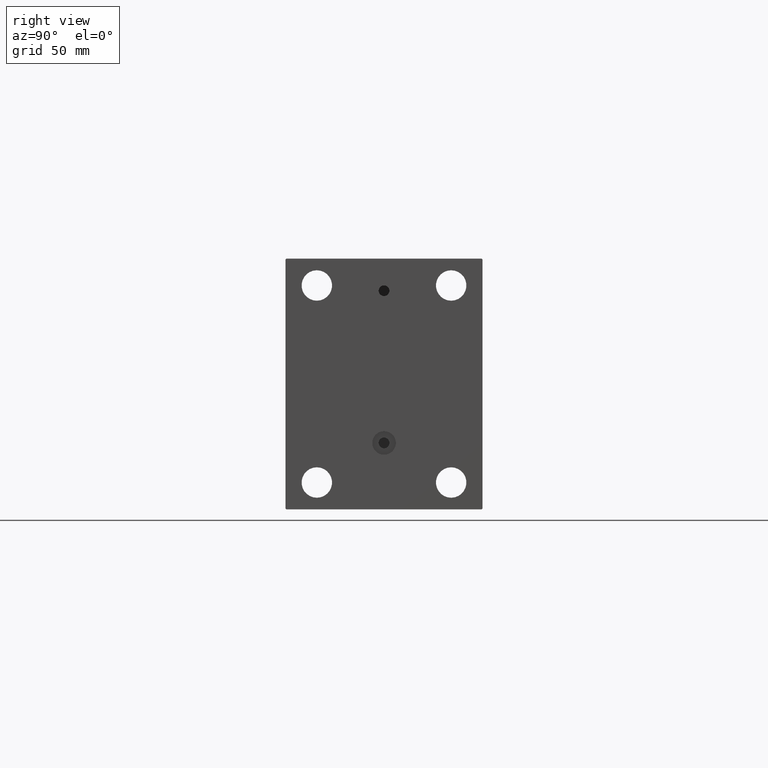
[diagram: clean part render]
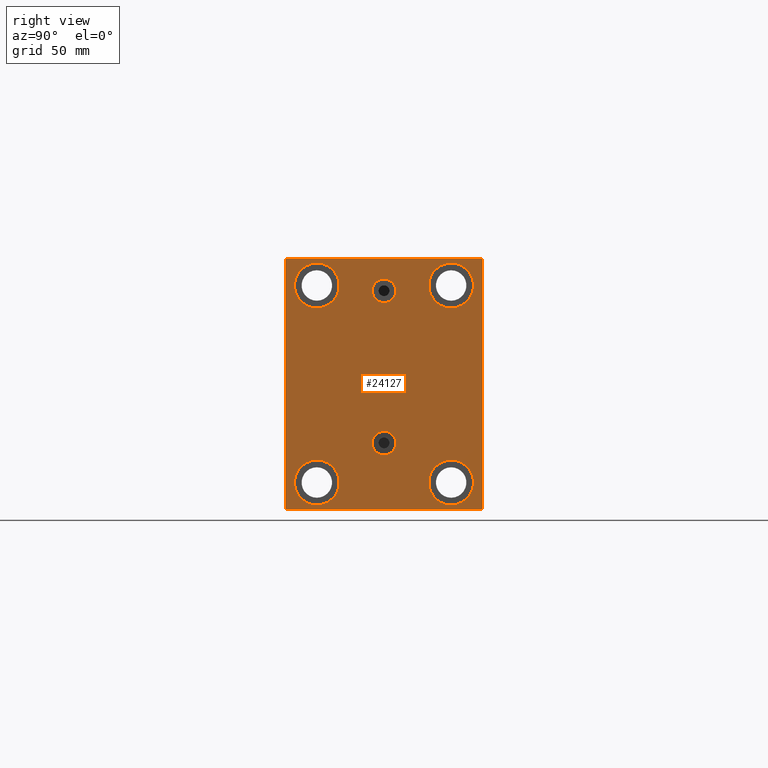
[diagram: same view with one face highlighted and labeled with its STEP entity id]
A machine part, right view. The second image highlights one B-rep face of the part: STEP entity #24127.
In plain terms, the highlighted planar face has unit normal (1, 0, 0).
Its self-contained STEP definition (entity closure, byte-faithful):
#638 = CARTESIAN_POINT ( 'NONE',  ( 243.0000000000000000, 55.00000000000002132, -69.49999999999997158 ) ) ;
#1002 = VERTEX_POINT ( 'NONE', #29715 ) ;
#1027 = EDGE_CURVE ( 'NONE', #41158, #43482, #15551, .T. ) ;
#1388 = DIRECTION ( 'NONE',  ( 1.000000000000000000, 0.000000000000000000, 0.000000000000000000 ) ) ;
#1474 = ORIENTED_EDGE ( 'NONE', *, *, #36193, .T. ) ;
#1838 = EDGE_CURVE ( 'NONE', #25238, #33570, #27618, .T. ) ;
#1909 = VERTEX_POINT ( 'NONE', #12318 ) ;
#2012 = AXIS2_PLACEMENT_3D ( 'NONE', #18868, #1388, #33480 ) ;
#2183 = EDGE_LOOP ( 'NONE', ( #8407, #42965 ) ) ;
#2468 = ORIENTED_EDGE ( 'NONE', *, *, #6072, .T. ) ;
#2766 = ORIENTED_EDGE ( 'NONE', *, *, #42655, .F. ) ;
#2870 = EDGE_CURVE ( 'NONE', #33570, #25238, #30680, .T. ) ;
#3009 = CARTESIAN_POINT ( 'NONE',  ( 243.0000000000000000, -55.00000000000000711, -70.00000000000002842 ) ) ;
#3378 = LINE ( 'NONE', #12309, #38345 ) ;
#4165 = AXIS2_PLACEMENT_3D ( 'NONE', #5289, #9508, #38322 ) ;
#4504 = VERTEX_POINT ( 'NONE', #12935 ) ;
#4664 = VECTOR ( 'NONE', #13137, 1000.000000000000000 ) ;
#4668 = EDGE_CURVE ( 'NONE', #41846, #22910, #45833, .T. ) ;
#4738 = VERTEX_POINT ( 'NONE', #38140 ) ;
#4804 = CARTESIAN_POINT ( 'NONE',  ( 243.0000000000000000, 4.041334437186266200E-15, -39.58000000000000540 ) ) ;
#5081 = CARTESIAN_POINT ( 'NONE',  ( 243.0000000000000000, 37.50000000000000711, 42.50000000000000711 ) ) ;
#5189 = DIRECTION ( 'NONE',  ( 0.000000000000000000, 0.000000000000000000, 1.000000000000000000 ) ) ;
#5289 = CARTESIAN_POINT ( 'NONE',  ( 243.0000000000000000, 4.041334437186266200E-15, -33.00000000000000000 ) ) ;
#5644 = CARTESIAN_POINT ( 'NONE',  ( 243.0000000000000000, -37.50000000000000711, 55.00000000000000711 ) ) ;
#5665 = DIRECTION ( 'NONE',  ( 0.000000000000000000, -0.7071067811865474617, -0.7071067811865474617 ) ) ;
#5943 = VERTEX_POINT ( 'NONE', #20140 ) ;
#6072 = EDGE_CURVE ( 'NONE', #17604, #9029, #3378, .T. ) ;
#6087 = FACE_BOUND ( 'NONE', #45901, .T. ) ;
#6242 = EDGE_LOOP ( 'NONE', ( #2766, #41104 ) ) ;
#6325 = PLANE ( 'NONE',  #12346 ) ;
#6531 = DIRECTION ( 'NONE',  ( -1.000000000000000000, -0.000000000000000000, -0.000000000000000000 ) ) ;
#6627 = DIRECTION ( 'NONE',  ( -0.000000000000000000, 0.7071067811865771047, -0.7071067811865180408 ) ) ;
#6786 = DIRECTION ( 'NONE',  ( 0.000000000000000000, 1.000000000000000000, 2.523234146875355012E-16 ) ) ;
#6940 = EDGE_CURVE ( 'NONE', #1909, #5943, #18765, .T. ) ;
#7212 = CARTESIAN_POINT ( 'NONE',  ( 243.0000000000000000, 37.49999999999997868, -54.99999999999999289 ) ) ;
#7444 = ORIENTED_EDGE ( 'NONE', *, *, #39673, .T. ) ;
#7725 = DIRECTION ( 'NONE',  ( 0.000000000000000000, 0.000000000000000000, 1.000000000000000000 ) ) ;
#7871 = EDGE_LOOP ( 'NONE', ( #43547, #20112 ) ) ;
#7987 = CIRCLE ( 'NONE', #44920, 12.49999999999999645 ) ;
#7998 = VERTEX_POINT ( 'NONE', #40037 ) ;
#8281 = VECTOR ( 'NONE', #35866, 1000.000000000000000 ) ;
#8364 = DIRECTION ( 'NONE',  ( -1.000000000000000000, -0.000000000000000000, -0.000000000000000000 ) ) ;
#8407 = ORIENTED_EDGE ( 'NONE', *, *, #6940, .T. ) ;
#9029 = VERTEX_POINT ( 'NONE', #45568 ) ;
#9405 = VERTEX_POINT ( 'NONE', #23965 ) ;
#9508 = DIRECTION ( 'NONE',  ( 1.000000000000000000, 0.000000000000000000, -0.000000000000000000 ) ) ;
#9751 = EDGE_CURVE ( 'NONE', #4738, #11013, #21959, .T. ) ;
#10208 = CIRCLE ( 'NONE', #4165, 6.580000000000002736 ) ;
#10305 = LINE ( 'NONE', #27294, #4664 ) ;
#10385 = DIRECTION ( 'NONE',  ( 0.000000000000000000, 0.000000000000000000, -1.000000000000000000 ) ) ;
#11013 = VERTEX_POINT ( 'NONE', #638 ) ;
#11911 = CARTESIAN_POINT ( 'NONE',  ( 243.0000000000000000, 37.50000000000000711, 55.00000000000000711 ) ) ;
#12219 = ORIENTED_EDGE ( 'NONE', *, *, #22328, .T. ) ;
#12309 = CARTESIAN_POINT ( 'NONE',  ( 243.0000000000000000, 62.24999999999997158, 62.24999999999997158 ) ) ;
#12318 = CARTESIAN_POINT ( 'NONE',  ( 243.0000000000000000, 37.49999999999997868, -67.49999999999998579 ) ) ;
#12346 = AXIS2_PLACEMENT_3D ( 'NONE', #45758, #20971, #27804 ) ;
#12593 = AXIS2_PLACEMENT_3D ( 'NONE', #5644, #23821, #5189 ) ;
#12935 = CARTESIAN_POINT ( 'NONE',  ( 243.0000000000000000, -54.50000000000000711, -70.00000000000002842 ) ) ;
#13137 = DIRECTION ( 'NONE',  ( 0.000000000000000000, 0.000000000000000000, -1.000000000000000000 ) ) ;
#13190 = DIRECTION ( 'NONE',  ( -1.000000000000000000, -0.000000000000000000, -0.000000000000000000 ) ) ;
#15551 = CIRCLE ( 'NONE', #2012, 6.580000000000002736 ) ;
#15647 = CIRCLE ( 'NONE', #42057, 6.580000000000002736 ) ;
#15847 = DIRECTION ( 'NONE',  ( -0.000000000000000000, -0.7071067811865474617, 0.7071067811865474617 ) ) ;
#16191 = CIRCLE ( 'NONE', #39598, 6.580000000000002736 ) ;
#16553 = DIRECTION ( 'NONE',  ( 0.000000000000000000, 0.000000000000000000, 1.000000000000000000 ) ) ;
#17208 = EDGE_CURVE ( 'NONE', #9029, #9405, #26118, .T. ) ;
#17466 = CARTESIAN_POINT ( 'NONE',  ( 243.0000000000000000, -8.775864102628257178E-15, 52.00000000000000711 ) ) ;
#17604 = VERTEX_POINT ( 'NONE', #30993 ) ;
#17978 = ORIENTED_EDGE ( 'NONE', *, *, #34933, .F. ) ;
#18022 = CARTESIAN_POINT ( 'NONE',  ( 243.0000000000000000, 4.041334437186266200E-15, -33.00000000000000000 ) ) ;
#18682 = ORIENTED_EDGE ( 'NONE', *, *, #1027, .F. ) ;
#18765 = CIRCLE ( 'NONE', #30811, 12.49999999999999645 ) ;
#18844 = ORIENTED_EDGE ( 'NONE', *, *, #35788, .T. ) ;
#18868 = CARTESIAN_POINT ( 'NONE',  ( 243.0000000000000000, -8.775864102628257178E-15, 52.00000000000000711 ) ) ;
#19152 = CARTESIAN_POINT ( 'NONE',  ( 243.0000000000000000, -55.00000000000000711, 69.50000000000001421 ) ) ;
#19158 = EDGE_CURVE ( 'NONE', #45849, #1002, #10305, .T. ) ;
#19438 = AXIS2_PLACEMENT_3D ( 'NONE', #33197, #22357, #7725 ) ;
#19848 = DIRECTION ( 'NONE',  ( 0.000000000000000000, -1.982541115402065110E-16, 1.000000000000000000 ) ) ;
#20008 = EDGE_LOOP ( 'NONE', ( #22057, #35688, #22743, #1474, #12219, #32762, #18844, #2468 ) ) ;
#20056 = ORIENTED_EDGE ( 'NONE', *, *, #2870, .T. ) ;
#20112 = ORIENTED_EDGE ( 'NONE', *, *, #4668, .T. ) ;
#20140 = CARTESIAN_POINT ( 'NONE',  ( 243.0000000000000000, 37.49999999999997868, -42.49999999999999289 ) ) ;
#20485 = FACE_BOUND ( 'NONE', #7871, .T. ) ;
#20540 = LINE ( 'NONE', #41575, #32780 ) ;
#20820 = ORIENTED_EDGE ( 'NONE', *, *, #1838, .T. ) ;
#20858 = AXIS2_PLACEMENT_3D ( 'NONE', #11911, #8364, #22773 ) ;
#20889 = VERTEX_POINT ( 'NONE', #5081 ) ;
#20953 = LINE ( 'NONE', #3009, #37182 ) ;
#20971 = DIRECTION ( 'NONE',  ( 1.000000000000000000, 0.000000000000000000, 0.000000000000000000 ) ) ;
#21475 = CIRCLE ( 'NONE', #38788, 12.49999999999999645 ) ;
#21959 = LINE ( 'NONE', #29260, #8281 ) ;
#22057 = ORIENTED_EDGE ( 'NONE', *, *, #17208, .T. ) ;
#22328 = EDGE_CURVE ( 'NONE', #4504, #4738, #20953, .T. ) ;
#22357 = DIRECTION ( 'NONE',  ( -1.000000000000000000, -0.000000000000000000, -0.000000000000000000 ) ) ;
#22738 = VERTEX_POINT ( 'NONE', #42847 ) ;
#22743 = ORIENTED_EDGE ( 'NONE', *, *, #19158, .T. ) ;
#22773 = DIRECTION ( 'NONE',  ( 0.000000000000000000, 0.000000000000000000, 1.000000000000000000 ) ) ;
#22910 = VERTEX_POINT ( 'NONE', #42789 ) ;
#22990 = CIRCLE ( 'NONE', #25970, 12.49999999999999645 ) ;
#23614 = LINE ( 'NONE', #42028, #42606 ) ;
#23767 = CARTESIAN_POINT ( 'NONE',  ( 243.0000000000000000, 37.49999999999997868, -54.99999999999999289 ) ) ;
#23779 = VECTOR ( 'NONE', #6627, 999.9999999999998863 ) ;
#23821 = DIRECTION ( 'NONE',  ( -1.000000000000000000, -0.000000000000000000, -0.000000000000000000 ) ) ;
#23858 = LINE ( 'NONE', #31650, #23779 ) ;
#23965 = CARTESIAN_POINT ( 'NONE',  ( 243.0000000000000000, -54.50000000000003553, 69.99999999999998579 ) ) ;
#24053 = DIRECTION ( 'NONE',  ( -1.000000000000000000, -0.000000000000000000, -0.000000000000000000 ) ) ;
#24127 = ADVANCED_FACE ( 'NONE', ( #42923, #42453, #38665, #6087, #45991, #20485, #31350 ), #6325, .T. ) ;
#24269 = ORIENTED_EDGE ( 'NONE', *, *, #30406, .T. ) ;
#24640 = DIRECTION ( 'NONE',  ( 1.000000000000000000, 0.000000000000000000, -0.000000000000000000 ) ) ;
#24864 = CARTESIAN_POINT ( 'NONE',  ( 243.0000000000000000, -37.50000000000002132, -42.49999999999999289 ) ) ;
#25238 = VERTEX_POINT ( 'NONE', #43604 ) ;
#25970 = AXIS2_PLACEMENT_3D ( 'NONE', #42248, #24053, #38459 ) ;
#26118 = LINE ( 'NONE', #36970, #39292 ) ;
#27294 = CARTESIAN_POINT ( 'NONE',  ( 243.0000000000000000, -55.00000000000000711, 69.99999999999998579 ) ) ;
#27420 = CARTESIAN_POINT ( 'NONE',  ( 243.0000000000000000, -37.50000000000000711, 67.50000000000000000 ) ) ;
#27579 = DIRECTION ( 'NONE',  ( 0.000000000000000000, 0.000000000000000000, 1.000000000000000000 ) ) ;
#27618 = CIRCLE ( 'NONE', #45736, 12.49999999999999645 ) ;
#27804 = DIRECTION ( 'NONE',  ( 0.000000000000000000, 0.000000000000000000, -1.000000000000000000 ) ) ;
#29052 = CARTESIAN_POINT ( 'NONE',  ( 243.0000000000000000, -7.970046508789298136E-15, 58.58000000000000540 ) ) ;
#29260 = CARTESIAN_POINT ( 'NONE',  ( 243.0000000000000000, 62.25000000000153477, -62.24999999999806732 ) ) ;
#29715 = CARTESIAN_POINT ( 'NONE',  ( 243.0000000000000000, -55.00000000000000711, -69.50000000000007105 ) ) ;
#30406 = EDGE_CURVE ( 'NONE', #7998, #20889, #22990, .T. ) ;
#30680 = CIRCLE ( 'NONE', #12593, 12.49999999999999645 ) ;
#30772 = EDGE_CURVE ( 'NONE', #5943, #1909, #21475, .T. ) ;
#30811 = AXIS2_PLACEMENT_3D ( 'NONE', #7212, #38619, #46639 ) ;
#30948 = CARTESIAN_POINT ( 'NONE',  ( 243.0000000000000000, -37.50000000000000711, 55.00000000000000711 ) ) ;
#30993 = CARTESIAN_POINT ( 'NONE',  ( 243.0000000000000000, 54.99999999999999289, 69.49999999999995737 ) ) ;
#31350 = FACE_OUTER_BOUND ( 'NONE', #20008, .T. ) ;
#31650 = CARTESIAN_POINT ( 'NONE',  ( 243.0000000000000000, -62.24999999999776890, -62.25000000000295586 ) ) ;
#32762 = ORIENTED_EDGE ( 'NONE', *, *, #9751, .T. ) ;
#32780 = VECTOR ( 'NONE', #19848, 1000.000000000000000 ) ;
#33197 = CARTESIAN_POINT ( 'NONE',  ( 243.0000000000000000, -37.50000000000002132, -54.99999999999999289 ) ) ;
#33480 = DIRECTION ( 'NONE',  ( 0.000000000000000000, 0.000000000000000000, -1.000000000000000000 ) ) ;
#33570 = VERTEX_POINT ( 'NONE', #27420 ) ;
#34762 = EDGE_CURVE ( 'NONE', #9405, #45849, #23614, .T. ) ;
#34933 = EDGE_CURVE ( 'NONE', #43482, #41158, #16191, .T. ) ;
#35387 = EDGE_LOOP ( 'NONE', ( #17978, #18682 ) ) ;
#35688 = ORIENTED_EDGE ( 'NONE', *, *, #34762, .T. ) ;
#35788 = EDGE_CURVE ( 'NONE', #11013, #17604, #20540, .T. ) ;
#35866 = DIRECTION ( 'NONE',  ( -0.000000000000000000, 0.7071067811865279218, 0.7071067811865672237 ) ) ;
#36193 = EDGE_CURVE ( 'NONE', #1002, #4504, #23858, .T. ) ;
#36537 = EDGE_CURVE ( 'NONE', #22738, #45553, #10208, .T. ) ;
#36711 = CARTESIAN_POINT ( 'NONE',  ( 243.0000000000000000, -8.775864102628257178E-15, 45.42000000000000171 ) ) ;
#36970 = CARTESIAN_POINT ( 'NONE',  ( 243.0000000000000000, 54.99999999999999289, 70.00000000000000000 ) ) ;
#37182 = VECTOR ( 'NONE', #6786, 1000.000000000000000 ) ;
#37335 = EDGE_CURVE ( 'NONE', #22910, #41846, #7987, .T. ) ;
#38140 = CARTESIAN_POINT ( 'NONE',  ( 243.0000000000000000, 54.50000000000002132, -70.00000000000000000 ) ) ;
#38208 = CARTESIAN_POINT ( 'NONE',  ( 243.0000000000000000, -37.50000000000002132, -54.99999999999999289 ) ) ;
#38322 = DIRECTION ( 'NONE',  ( 0.000000000000000000, 0.000000000000000000, 1.000000000000000000 ) ) ;
#38345 = VECTOR ( 'NONE', #15847, 1000.000000000000114 ) ;
#38459 = DIRECTION ( 'NONE',  ( 0.000000000000000000, 0.000000000000000000, 1.000000000000000000 ) ) ;
#38478 = DIRECTION ( 'NONE',  ( 1.000000000000000000, 0.000000000000000000, 0.000000000000000000 ) ) ;
#38619 = DIRECTION ( 'NONE',  ( -1.000000000000000000, -0.000000000000000000, -0.000000000000000000 ) ) ;
#38636 = DIRECTION ( 'NONE',  ( 0.000000000000000000, 0.000000000000000000, 1.000000000000000000 ) ) ;
#38665 = FACE_BOUND ( 'NONE', #2183, .T. ) ;
#38788 = AXIS2_PLACEMENT_3D ( 'NONE', #23767, #6531, #38636 ) ;
#39292 = VECTOR ( 'NONE', #40764, 1000.000000000000000 ) ;
#39598 = AXIS2_PLACEMENT_3D ( 'NONE', #17466, #38478, #10385 ) ;
#39673 = EDGE_CURVE ( 'NONE', #20889, #7998, #46499, .T. ) ;
#40037 = CARTESIAN_POINT ( 'NONE',  ( 243.0000000000000000, 37.50000000000000711, 67.50000000000000000 ) ) ;
#40764 = DIRECTION ( 'NONE',  ( 0.000000000000000000, -1.000000000000000000, -1.261617073437677999E-16 ) ) ;
#41104 = ORIENTED_EDGE ( 'NONE', *, *, #36537, .F. ) ;
#41158 = VERTEX_POINT ( 'NONE', #29052 ) ;
#41575 = CARTESIAN_POINT ( 'NONE',  ( 243.0000000000000000, 55.00000000000002132, -70.00000000000000000 ) ) ;
#41846 = VERTEX_POINT ( 'NONE', #24864 ) ;
#42028 = CARTESIAN_POINT ( 'NONE',  ( 243.0000000000000000, -62.25000000000000711, 62.25000000000000711 ) ) ;
#42057 = AXIS2_PLACEMENT_3D ( 'NONE', #18022, #24640, #42822 ) ;
#42248 = CARTESIAN_POINT ( 'NONE',  ( 243.0000000000000000, 37.50000000000000711, 55.00000000000000711 ) ) ;
#42453 = FACE_BOUND ( 'NONE', #6242, .T. ) ;
#42606 = VECTOR ( 'NONE', #5665, 1000.000000000000114 ) ;
#42655 = EDGE_CURVE ( 'NONE', #45553, #22738, #15647, .T. ) ;
#42789 = CARTESIAN_POINT ( 'NONE',  ( 243.0000000000000000, -37.50000000000002132, -67.49999999999998579 ) ) ;
#42822 = DIRECTION ( 'NONE',  ( 0.000000000000000000, 0.000000000000000000, 1.000000000000000000 ) ) ;
#42847 = CARTESIAN_POINT ( 'NONE',  ( 243.0000000000000000, 4.847152031025224453E-15, -26.41999999999999815 ) ) ;
#42923 = FACE_BOUND ( 'NONE', #35387, .T. ) ;
#42965 = ORIENTED_EDGE ( 'NONE', *, *, #30772, .T. ) ;
#43482 = VERTEX_POINT ( 'NONE', #36711 ) ;
#43547 = ORIENTED_EDGE ( 'NONE', *, *, #37335, .T. ) ;
#43604 = CARTESIAN_POINT ( 'NONE',  ( 243.0000000000000000, -37.50000000000000711, 42.50000000000000711 ) ) ;
#44674 = DIRECTION ( 'NONE',  ( -1.000000000000000000, -0.000000000000000000, -0.000000000000000000 ) ) ;
#44920 = AXIS2_PLACEMENT_3D ( 'NONE', #38208, #13190, #27579 ) ;
#45553 = VERTEX_POINT ( 'NONE', #4804 ) ;
#45568 = CARTESIAN_POINT ( 'NONE',  ( 243.0000000000000000, 54.49999999999993605, 70.00000000000000000 ) ) ;
#45678 = EDGE_LOOP ( 'NONE', ( #7444, #24269 ) ) ;
#45736 = AXIS2_PLACEMENT_3D ( 'NONE', #30948, #44674, #16553 ) ;
#45758 = CARTESIAN_POINT ( 'NONE',  ( 243.0000000000000000, 0.000000000000000000, 0.000000000000000000 ) ) ;
#45833 = CIRCLE ( 'NONE', #19438, 12.49999999999999645 ) ;
#45849 = VERTEX_POINT ( 'NONE', #19152 ) ;
#45901 = EDGE_LOOP ( 'NONE', ( #20820, #20056 ) ) ;
#45991 = FACE_BOUND ( 'NONE', #45678, .T. ) ;
#46499 = CIRCLE ( 'NONE', #20858, 12.49999999999999645 ) ;
#46639 = DIRECTION ( 'NONE',  ( 0.000000000000000000, 0.000000000000000000, 1.000000000000000000 ) ) ;